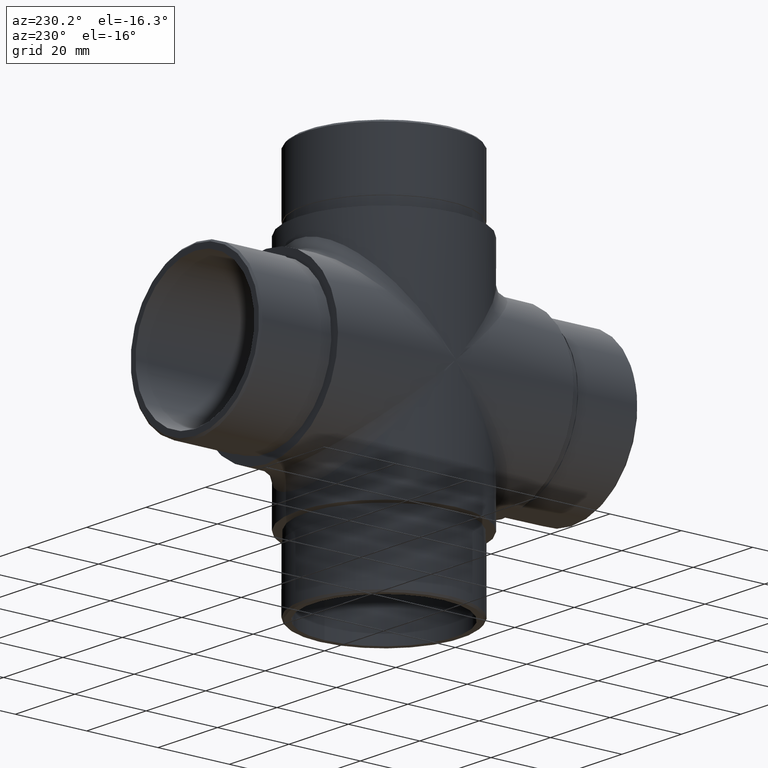
[diagram: clean part render]
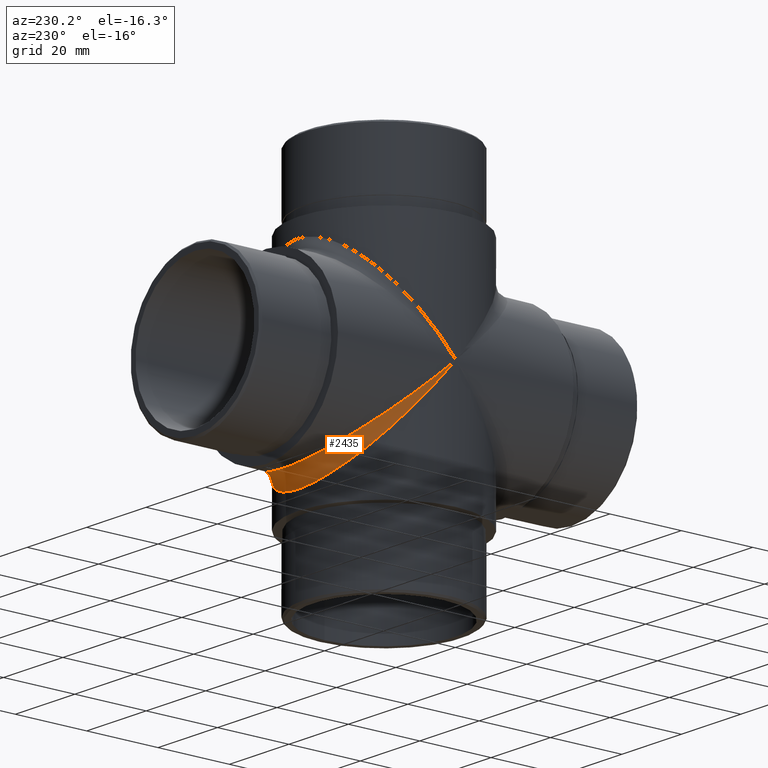
[diagram: same view with one face highlighted and labeled with its STEP entity id]
A machine part, auxiliary view. The second image highlights one B-rep face of the part: STEP entity #2435.
In plain terms, the highlighted face is a freeform B-spline surface patch.
Its self-contained STEP definition (entity closure, byte-faithful):
#25 = CARTESIAN_POINT ( 'NONE',  ( -23.37760206579704200, 6.261674029330460000, -7.298804303338866500 ) ) ;
#229 = CARTESIAN_POINT ( 'NONE',  ( 24.14999999999999500, 48.30000000000001100, -56.30000000000000400 ) ) ;
#257 = CARTESIAN_POINT ( 'NONE',  ( 18.46277926140413300, 15.70630572747065300, -15.70630572747065300 ) ) ;
#305 = CARTESIAN_POINT ( 'NONE',  ( 23.37760206579724800, 6.261674029329431500, -7.298804303337803400 ) ) ;
#380 = CARTESIAN_POINT ( 'NONE',  ( 19.20184915790168000, 17.17121264146493300, -14.73125347393975700 ) ) ;
#832 = CARTESIAN_POINT ( 'NONE',  ( -12.10278878095389000, 24.42945951235408900, -20.95813311627994600 ) ) ;
#877 = CARTESIAN_POINT ( 'NONE',  ( -1.580613803510328500, 28.15000000000000200, -24.15000000000000600 ) ) ;
#926 = CARTESIAN_POINT ( 'NONE',  ( -14.88609126051184500, 19.14100034245611000, -19.14100034245611000 ) ) ;
#963 = CARTESIAN_POINT ( 'NONE',  ( 3.161188524196985000, 27.96854262612146500, -23.99432697764946100 ) ) ;
#1003 = CARTESIAN_POINT ( 'NONE',  ( -3.161188524198118800, 23.99432697764923700, -27.96854262611494200 ) ) ;
#1124 = VERTEX_POINT ( 'NONE', #10768 ) ;
#1225 = CARTESIAN_POINT ( 'NONE',  ( 24.15000000000000600, 1.580631733874845000, -1.842434091452458600 ) ) ;
#1813 = CARTESIAN_POINT ( 'NONE',  ( -1.318814416426104200, 24.14999999999999500, -24.14999999999999500 ) ) ;
#1856 = CARTESIAN_POINT ( 'NONE',  ( 7.781508149715457500, 22.91656542573240400, -26.71226984407132200 ) ) ;
#1881 = CARTESIAN_POINT ( 'NONE',  ( -24.14999999999999900, -4.436283029911287700E-015, 5.171071109399699400E-015 ) ) ;
#1901 = CARTESIAN_POINT ( 'NONE',  ( -22.91656542577541300, 7.781508149611598300, -9.070370783090695000 ) ) ;
#1939 = CARTESIAN_POINT ( 'NONE',  ( 7.781508149715457500, 26.71226984407132200, -22.91656542573240400 ) ) ;
#1979 = CARTESIAN_POINT ( 'NONE',  ( -2.623246104855443000, 24.05152766059763500, -24.05152766059763500 ) ) ;
#2251 = CARTESIAN_POINT ( 'NONE',  ( 18.19429150462408600, 15.95896602668616800, -18.60227302903594500 ) ) ;
#2435 = ADVANCED_FACE ( 'NONE', ( #4904 ), #8108, .F. ) ;
#2474 = CARTESIAN_POINT ( 'NONE',  ( 12.10278878095724200, 24.42945951234679600, -20.95813311627770000 ) ) ;
#2726 = CARTESIAN_POINT ( 'NONE',  ( -24.15000000000000600, 0.0000000000000000000, 0.0000000000000000000 ) ) ;
#2779 = CARTESIAN_POINT ( 'NONE',  ( 2.623246104851554100, 24.05152766060458800, -24.05152766060458800 ) ) ;
#2821 = CARTESIAN_POINT ( 'NONE',  ( 12.10278878095724200, 20.95813311627770000, -24.42945951234679600 ) ) ;
#2850 = CARTESIAN_POINT ( 'NONE',  ( -24.14999999999999900, -5.171071109399699400E-015, 4.436283029911287700E-015 ) ) ;
#2872 = CARTESIAN_POINT ( 'NONE',  ( -10.85479118813426600, 21.67824719417587800, -21.67824719417587800 ) ) ;
#2914 = CARTESIAN_POINT ( 'NONE',  ( 10.70210163351831100, 21.70681599456278100, -25.30214783631416300 ) ) ;
#2960 = CARTESIAN_POINT ( 'NONE',  ( -15.95896602668030300, 21.20783875177059100, -18.19429150462995200 ) ) ;
#3145 = CARTESIAN_POINT ( 'NONE',  ( 20.95813311631123500, 14.10739147753871200, -12.10278878090706700 ) ) ;
#3190 = CARTESIAN_POINT ( 'NONE',  ( 22.70764488886259600, 8.414768461772267100, -8.414768461772267100 ) ) ;
#3234 = CARTESIAN_POINT ( 'NONE',  ( 24.14999999999999900, -8.431927433306167400E-014, 9.828519968843420700E-014 ) ) ;
#3313 = CARTESIAN_POINT ( 'NONE',  ( 22.91656542577553100, 9.070370783088593600, -7.781508149611348700 ) ) ;
#3742 = ORIENTED_EDGE ( 'NONE', *, *, #6878, .F. ) ;
#3781 = CARTESIAN_POINT ( 'NONE',  ( -20.95813311630932300, 12.10278878090991700, -14.10739147754284100 ) ) ;
#3820 = CARTESIAN_POINT ( 'NONE',  ( -20.44781897946355200, 12.99296914609443700, -12.99296914609443700 ) ) ;
#3857 = CARTESIAN_POINT ( 'NONE',  ( -24.14999999999999500, 56.30000000000000400, -48.30000000000001100 ) ) ;
#3867 = CARTESIAN_POINT ( 'NONE',  ( -3.161188524198118800, 27.96854262611494200, -23.99432697764923700 ) ) ;
#3907 = CARTESIAN_POINT ( 'NONE',  ( -24.14999999999999900, 1.842434091453190700, -1.580631733875473000 ) ) ;
#3958 = CARTESIAN_POINT ( 'NONE',  ( -22.91656542577541300, 9.070370783090695000, -7.781508149611598300 ) ) ;
#4231 = CARTESIAN_POINT ( 'NONE',  ( 14.88609126051973600, 19.14100034245620900, -19.14100034245620900 ) ) ;
#4694 = EDGE_LOOP ( 'NONE', ( #3742, #11571 ) ) ;
#4766 = CARTESIAN_POINT ( 'NONE',  ( -6.261674029180939600, 27.24966866058692400, -23.37760206582678500 ) ) ;
#4810 = CARTESIAN_POINT ( 'NONE',  ( -6.261674029180939600, 23.37760206582678500, -27.24966866058692400 ) ) ;
#4838 = CARTESIAN_POINT ( 'NONE',  ( -24.14999999999999900, 1.580631733875473000, -1.842434091453190700 ) ) ;
#4855 = CARTESIAN_POINT ( 'NONE',  ( -1.580613803510328500, 24.15000000000000600, -28.15000000000000200 ) ) ;
#4898 = CARTESIAN_POINT ( 'NONE',  ( -23.37760206579704200, 7.298804303338866500, -6.261674029330460000 ) ) ;
#4904 = FACE_OUTER_BOUND ( 'NONE', #4694, .T. ) ;
#4920 = CARTESIAN_POINT ( 'NONE',  ( 24.15000000000000600, 0.0000000000000000000, 0.0000000000000000000 ) ) ;
#5073 = CARTESIAN_POINT ( 'NONE',  ( 20.44781897945537400, 12.99296914608832900, -12.99296914608832900 ) ) ;
#5117 = CARTESIAN_POINT ( 'NONE',  ( 18.19429150462408600, 18.60227302903594500, -15.95896602668616800 ) ) ;
#5162 = CARTESIAN_POINT ( 'NONE',  ( 23.37760206579724800, 7.298804303337803400, -6.261674029329431500 ) ) ;
#5208 = CARTESIAN_POINT ( 'NONE',  ( 22.91656542577553100, 7.781508149611348700, -9.070370783088593600 ) ) ;
#5244 = CARTESIAN_POINT ( 'NONE',  ( 23.99432697767877400, 3.161188524049620300, -3.684780826170283700 ) ) ;
#5391 = CARTESIAN_POINT ( 'NONE',  ( 13.56856898338688900, 20.08736315190735400, -20.08736315190735400 ) ) ;
#5689 = CARTESIAN_POINT ( 'NONE',  ( -18.19429150463004800, 18.60227302903191700, -15.95896602668019100 ) ) ;
#5735 = CARTESIAN_POINT ( 'NONE',  ( 5.320797334014494100, 23.61336946575615400, -23.61336946575615400 ) ) ;
#5777 = CARTESIAN_POINT ( 'NONE',  ( -23.99432697767899500, 3.161188524048494500, -3.684780826169107700 ) ) ;
#5817 = CARTESIAN_POINT ( 'NONE',  ( -23.24912884865930400, 6.775836689712842400, -6.775836689712842400 ) ) ;
#5862 = CARTESIAN_POINT ( 'NONE',  ( -13.56856898338635600, 20.08736315189694100, -20.08736315189694100 ) ) ;
#6168 = CARTESIAN_POINT ( 'NONE',  ( 24.14999999999999900, -9.130223701074794000E-014, 9.130223701074794000E-014 ) ) ;
#6440 = CARTESIAN_POINT ( 'NONE',  ( 14.73125347388953400, 22.38227966028651000, -19.20184915793523600 ) ) ;
#6672 = CARTESIAN_POINT ( 'NONE',  ( -15.95896602668030300, 18.19429150462995200, -21.20783875177059100 ) ) ;
#6719 = CARTESIAN_POINT ( 'NONE',  ( 6.261674029181979700, 27.24966866058042200, -23.37760206582658300 ) ) ;
#6751 = CARTESIAN_POINT ( 'NONE',  ( 24.15000000000000600, 0.0000000000000000000, 0.0000000000000000000 ) ) ;
#6758 = CARTESIAN_POINT ( 'NONE',  ( -22.70764488886262800, 8.414768461772194300, -8.414768461772194300 ) ) ;
#6805 = CARTESIAN_POINT ( 'NONE',  ( 1.580613803510414500, 28.15000000000000200, -24.14999999999999900 ) ) ;
#6849 = CARTESIAN_POINT ( 'NONE',  ( -7.781508149713105600, 22.91656542573337800, -26.71226984408155400 ) ) ;
#6878 = EDGE_CURVE ( 'NONE', #1124, #8584, #8796, .T. ) ;
#7008 = CARTESIAN_POINT ( 'NONE',  ( -24.15000000000000600, 0.0000000000000000000, 0.0000000000000000000 ) ) ;
#7122 = CARTESIAN_POINT ( 'NONE',  ( 21.31438768496387200, 11.51736723195156900, -11.51736723195156900 ) ) ;
#7203 = CARTESIAN_POINT ( 'NONE',  ( 23.96601196217345700, 3.433582688435166600, -3.433582688435166600 ) ) ;
#7664 = CARTESIAN_POINT ( 'NONE',  ( -10.70210163352079400, 21.70681599456174400, -25.30214783630386300 ) ) ;
#7712 = CARTESIAN_POINT ( 'NONE',  ( -19.20184915790361300, 17.17121264146075200, -14.73125347393686000 ) ) ;
#7756 = CARTESIAN_POINT ( 'NONE',  ( -9.462697992457359300, 22.30585336242180400, -22.30585336242180400 ) ) ;
#7807 = CARTESIAN_POINT ( 'NONE',  ( 6.685530797796801900, 23.28134537949497600, -23.28134537949847500 ) ) ;
#7845 = CARTESIAN_POINT ( 'NONE',  ( -10.70210163352079400, 25.30214783630386300, -21.70681599456174400 ) ) ;
#8030 = CARTESIAN_POINT ( 'NONE',  ( 23.99432697767877400, 3.684780826170283700, -3.161188524049620300 ) ) ;
#8108 =( BOUNDED_SURFACE ( )  B_SPLINE_SURFACE ( 3, 2, ( 
 ( #1881, #10651, #2850 ),
 ( #4838, #12644, #3907 ),
 ( #5777, #11552, #12551 ),
 ( #25, #5817, #4898 ),
 ( #1901, #6758, #3958 ),
 ( #10762, #8847, #10676 ),
 ( #3781, #3820, #10805 ),
 ( #12693, #11731, #7712 ),
 ( #8761, #12593, #5689 ),
 ( #6672, #926, #2960 ),
 ( #11600, #5862, #8805 ),
 ( #11682, #2872, #832 ),
 ( #7664, #7756, #7845 ),
 ( #6849, #9646, #9730 ),
 ( #4810, #11644, #4766 ),
 ( #1003, #1979, #3867 ),
 ( #4855, #1813, #877 ),
 ( #10716, #8671, #6805 ),
 ( #9817, #2779, #963 ),
 ( #10628, #5735, #6719 ),
 ( #1856, #7807, #1939 ),
 ( #2914, #8721, #9781 ),
 ( #2821, #9691, #2474 ),
 ( #11354, #5391, #6440 ),
 ( #11100, #4231, #10936 ),
 ( #2251, #10088, #5117 ),
 ( #9070, #257, #380 ),
 ( #9186, #5073, #3145 ),
 ( #11066, #7122, #11917 ),
 ( #5208, #3190, #3313 ),
 ( #305, #8123, #5162 ),
 ( #5244, #7203, #8030 ),
 ( #1225, #9104, #12050 ),
 ( #3234, #6168, #10133 ) ),
 .UNSPECIFIED., .F., .F., .F. ) 
 B_SPLINE_SURFACE_WITH_KNOTS ( ( 4, 2, 2, 2, 2, 2, 2, 2, 2, 2, 2, 2, 2, 2, 2, 2, 4 ),
 ( 3, 3 ),
 ( 4.712388980384689700, 4.908738521234052000, 5.105088062083414300, 5.301437602932775700, 5.497787143782138000, 5.694136684631500200, 5.890486225480861600, 6.086835766330223900, 6.283185307179586200, 6.479534848028948500, 6.675884388878310800, 6.872233929727672200, 7.068583470577034500, 7.264933011426396800, 7.461282552275758200, 7.657632093125120500, 7.853981633974482800 ),
 ( 0.0000000000000000000, 1.000000000000000000 ),
 .UNSPECIFIED. ) 
 GEOMETRIC_REPRESENTATION_ITEM ( )  RATIONAL_B_SPLINE_SURFACE ( (
 ( 1.000000000000000000, 1.000000000000000000, 1.000000000000000000),
 ( 1.000000000000000000, 1.000009746408051500, 1.000000000000000000),
 ( 1.000000000000000000, 0.9967613244642740100, 1.000000000000000000),
 ( 1.000000000000000000, 0.9841171504834668200, 1.000000000000000000),
 ( 1.000000000000000000, 0.9747108043712224800, 1.000000000000000000),
 ( 1.000000000000000000, 0.9506740353910909700, 1.000000000000000000),
 ( 1.000000000000000000, 0.9360421842836844600, 1.000000000000000000),
 ( 1.000000000000000000, 0.9031650994027113900, 1.000000000000000000),
 ( 1.000000000000000000, 0.8849191471519858300, 1.000000000000000000),
 ( 1.000000000000000000, 0.8471316604168929200, 1.000000000000000000),
 ( 1.000000000000000000, 0.8275942696212533800, 1.000000000000000000),
 ( 1.000000000000000000, 0.7902180086220889100, 1.000000000000000000),
 ( 1.000000000000000000, 0.7723968218461202400, 1.000000000000000000),
 ( 1.000000000000000000, 0.7418334178510844800, 1.000000000000000000),
 ( 1.000000000000000000, 0.7291288940396003500, 1.000000000000000000),
 ( 1.000000000000000000, 0.7117460025037165600, 1.000000000000000000),
 ( 1.000000000000000000, 0.7071067811865469100, 1.000000000000000000),
 ( 1.000000000000000000, 0.7071067811865469100, 1.000000000000000000),
 ( 1.000000000000000000, 0.7117460025025695900, 1.000000000000000000),
 ( 1.000000000000000000, 0.7291288940407457700, 1.000000000000000000),
 ( 1.000000000000000000, 0.7418334178502078400, 1.000000000000000000),
 ( 1.000000000000000000, 0.7723968218469957600, 1.000000000000000000),
 ( 1.000000000000000000, 0.7902180086224391800, 1.000000000000000000),
 ( 1.000000000000000000, 0.8275942696209017700, 1.000000000000000000),
 ( 1.000000000000000000, 0.8471316604168914700, 1.000000000000000000),
 ( 1.000000000000000000, 0.8849191471519843900, 1.000000000000000000),
 ( 1.000000000000000000, 0.9031650994027110600, 1.000000000000000000),
 ( 1.000000000000000000, 0.9360421842836841300, 1.000000000000000000),
 ( 1.000000000000000000, 0.9506740353910905200, 1.000000000000000000),
 ( 1.000000000000000000, 0.9747108043712220400, 1.000000000000000000),
 ( 1.000000000000000000, 0.9841171504836098100, 1.000000000000000000),
 ( 1.000000000000000000, 0.9967613244641305700, 1.000000000000000000),
 ( 1.000000000000000000, 1.000009746408159900, 1.000000000000000000),
 ( 1.000000000000000000, 1.000000000000000000, 1.000000000000000000) ) ) 
 REPRESENTATION_ITEM ( '' )  SURFACE ( )  );
#8123 = CARTESIAN_POINT ( 'NONE',  ( 23.24912884866835600, 6.775836689712647900, -6.775836689712647900 ) ) ;
#8556 =( BOUNDED_CURVE ( )  B_SPLINE_CURVE ( 3, ( #6751, #12582, #3857, #2726 ),
 .UNSPECIFIED., .F., .T. ) 
 B_SPLINE_CURVE_WITH_KNOTS ( ( 4, 4 ),
 ( 4.712388980384689700, 7.853981633974482800 ),
 .UNSPECIFIED. ) 
 CURVE ( )  GEOMETRIC_REPRESENTATION_ITEM ( )  RATIONAL_B_SPLINE_CURVE ( ( 1.000000000000000000, 0.3333333333333333700, 0.3333333333333333700, 1.000000000000000000 ) ) 
 REPRESENTATION_ITEM ( '' )  );
#8584 = VERTEX_POINT ( 'NONE', #11314 ) ;
#8671 = CARTESIAN_POINT ( 'NONE',  ( 1.318814416426175900, 24.14999999999999500, -24.14999999999999500 ) ) ;
#8721 = CARTESIAN_POINT ( 'NONE',  ( 9.462697992459107300, 22.30585336243243000, -22.30585336242907600 ) ) ;
#8761 = CARTESIAN_POINT ( 'NONE',  ( -18.19429150463004800, 15.95896602668019100, -18.60227302903191700 ) ) ;
#8796 =( BOUNDED_CURVE ( )  B_SPLINE_CURVE ( 3, ( #7008, #9889, #229, #4920 ),
 .UNSPECIFIED., .F., .T. ) 
 B_SPLINE_CURVE_WITH_KNOTS ( ( 4, 4 ),
 ( 4.712388980384689700, 7.853981633974482800 ),
 .UNSPECIFIED. ) 
 CURVE ( )  GEOMETRIC_REPRESENTATION_ITEM ( )  RATIONAL_B_SPLINE_CURVE ( ( 1.000000000000000000, 0.3333333333333333700, 0.3333333333333333700, 1.000000000000000000 ) ) 
 REPRESENTATION_ITEM ( '' )  );
#8805 = CARTESIAN_POINT ( 'NONE',  ( -14.73125347389293400, 22.38227966027918100, -19.20184915793296200 ) ) ;
#8847 = CARTESIAN_POINT ( 'NONE',  ( -21.31438768496389700, 11.51736723195149800, -11.51736723195149800 ) ) ;
#9070 = CARTESIAN_POINT ( 'NONE',  ( 19.20184915790168000, 14.73125347393975700, -17.17121264146493300 ) ) ;
#9104 = CARTESIAN_POINT ( 'NONE',  ( 24.14999999998644500, 1.711516726839217500, -1.711516726839217500 ) ) ;
#9186 = CARTESIAN_POINT ( 'NONE',  ( 20.95813311631123500, 12.10278878090706700, -14.10739147753871200 ) ) ;
#9646 = CARTESIAN_POINT ( 'NONE',  ( -6.685530797802033300, 23.28134537950485200, -23.28134537950485200 ) ) ;
#9691 = CARTESIAN_POINT ( 'NONE',  ( 10.85479118813485400, 21.67824719416430300, -21.67824719416430300 ) ) ;
#9730 = CARTESIAN_POINT ( 'NONE',  ( -7.781508149713105600, 26.71226984408155400, -22.91656542573337800 ) ) ;
#9781 = CARTESIAN_POINT ( 'NONE',  ( 10.70210163351831100, 25.30214783631416300, -21.70681599456278100 ) ) ;
#9817 = CARTESIAN_POINT ( 'NONE',  ( 3.161188524196985000, 23.99432697764946100, -27.96854262612146500 ) ) ;
#9889 = CARTESIAN_POINT ( 'NONE',  ( -24.15000000000000900, 48.29999999999999700, -56.29999999999999000 ) ) ;
#10088 = CARTESIAN_POINT ( 'NONE',  ( 17.32826815304090200, 16.94576781627900900, -16.94576781627900900 ) ) ;
#10133 = CARTESIAN_POINT ( 'NONE',  ( 24.14999999999999900, -9.828519968843420700E-014, 8.431927433306167400E-014 ) ) ;
#10628 = CARTESIAN_POINT ( 'NONE',  ( 6.261674029181979700, 23.37760206582658300, -27.24966866058042200 ) ) ;
#10651 = CARTESIAN_POINT ( 'NONE',  ( -24.14999999999999900, -4.803677069655493100E-015, 4.803677069655493100E-015 ) ) ;
#10676 = CARTESIAN_POINT ( 'NONE',  ( -21.70681599451975400, 12.47470645906377500, -10.70210163362216200 ) ) ;
#10716 = CARTESIAN_POINT ( 'NONE',  ( 1.580613803510414500, 24.14999999999999900, -28.15000000000000200 ) ) ;
#10762 = CARTESIAN_POINT ( 'NONE',  ( -21.70681599451975400, 10.70210163362216200, -12.47470645906377500 ) ) ;
#10768 = CARTESIAN_POINT ( 'NONE',  ( -24.15000000000000600, 0.0000000000000000000, 0.0000000000000000000 ) ) ;
#10805 = CARTESIAN_POINT ( 'NONE',  ( -20.95813311630932300, 14.10739147754284100, -12.10278878090991700 ) ) ;
#10936 = CARTESIAN_POINT ( 'NONE',  ( 15.95896602668606900, 21.20783875176679000, -18.19429150462417500 ) ) ;
#11066 = CARTESIAN_POINT ( 'NONE',  ( 21.70681599451959400, 10.70210163362254500, -12.47470645906602700 ) ) ;
#11100 = CARTESIAN_POINT ( 'NONE',  ( 15.95896602668606900, 18.19429150462417500, -21.20783875176679000 ) ) ;
#11314 = CARTESIAN_POINT ( 'NONE',  ( 24.15000000000000600, 0.0000000000000000000, 0.0000000000000000000 ) ) ;
#11354 = CARTESIAN_POINT ( 'NONE',  ( 14.73125347388953400, 19.20184915793523600, -22.38227966028651000 ) ) ;
#11552 = CARTESIAN_POINT ( 'NONE',  ( -23.96601196218231400, 3.433582688435354400, -3.433582688435354400 ) ) ;
#11571 = ORIENTED_EDGE ( 'NONE', *, *, #11718, .F. ) ;
#11600 = CARTESIAN_POINT ( 'NONE',  ( -14.73125347389293400, 19.20184915793296600, -22.38227966027918100 ) ) ;
#11644 = CARTESIAN_POINT ( 'NONE',  ( -5.320797334015022500, 23.61336946576224000, -23.61336946576224000 ) ) ;
#11682 = CARTESIAN_POINT ( 'NONE',  ( -12.10278878095389000, 20.95813311627994600, -24.42945951235408900 ) ) ;
#11718 = EDGE_CURVE ( 'NONE', #8584, #1124, #8556, .T. ) ;
#11731 = CARTESIAN_POINT ( 'NONE',  ( -18.46277926139567800, 15.70630572746427400, -15.70630572746427400 ) ) ;
#11917 = CARTESIAN_POINT ( 'NONE',  ( 21.70681599451959400, 12.47470645906602700, -10.70210163362254500 ) ) ;
#12050 = CARTESIAN_POINT ( 'NONE',  ( 24.15000000000000600, 1.842434091452458600, -1.580631733874845000 ) ) ;
#12551 = CARTESIAN_POINT ( 'NONE',  ( -23.99432697767899500, 3.684780826169107700, -3.161188524048494500 ) ) ;
#12582 = CARTESIAN_POINT ( 'NONE',  ( 24.15000000000000900, 56.29999999999999000, -48.29999999999999700 ) ) ;
#12593 = CARTESIAN_POINT ( 'NONE',  ( -17.32826815304867900, 16.94576781627890900, -16.94576781627890900 ) ) ;
#12644 = CARTESIAN_POINT ( 'NONE',  ( -24.14999999998643800, 1.711516726839258600, -1.711516726839258600 ) ) ;
#12693 = CARTESIAN_POINT ( 'NONE',  ( -19.20184915790361300, 14.73125347393686000, -17.17121264146075200 ) ) ;